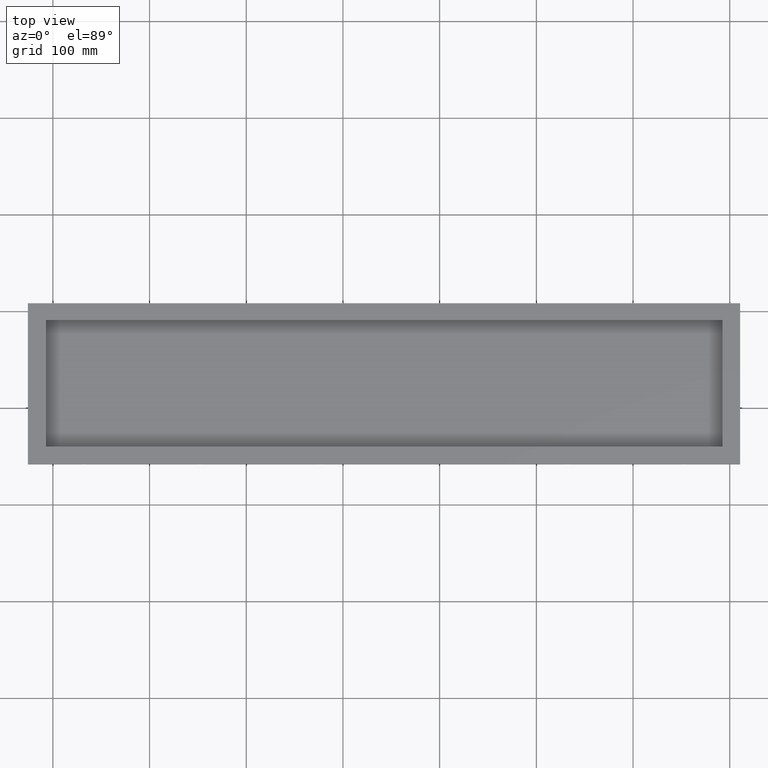
[diagram: clean part render]
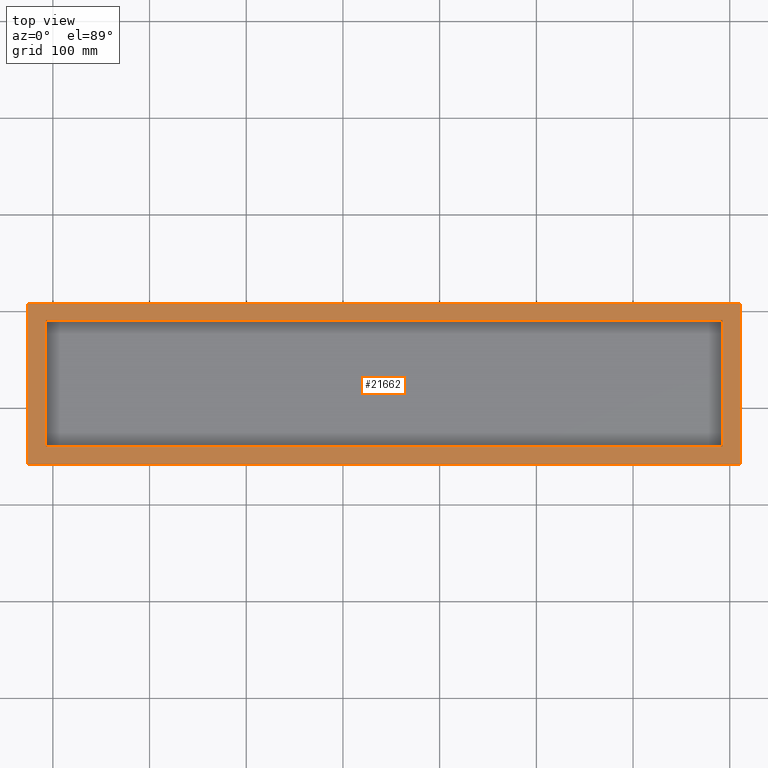
[diagram: same view with one face highlighted and labeled with its STEP entity id]
A machine part, top view. The second image highlights one B-rep face of the part: STEP entity #21662.
In plain terms, the highlighted planar face has unit normal (0, 0, 1).
Its self-contained STEP definition (entity closure, byte-faithful):
#3525 = CARTESIAN_POINT ( 'NONE',  ( 349.7999999999999500, -85.85200000000003200, 0.0000000000000000000 ) ) ;
#3526 = LINE ( 'NONE', #3525, #4042 ) ;
#3662 = DIRECTION ( 'NONE',  ( -0.0000000000000000000, 1.000000000000000000, 0.0000000000000000000 ) ) ;
#3663 = VECTOR ( 'NONE', #3662, 1000.000000000000000 ) ;
#3664 = CARTESIAN_POINT ( 'NONE',  ( 368.2999999999874500, -85.85200000000003200, 0.0000000000000000000 ) ) ;
#3665 = LINE ( 'NONE', #3664, #3663 ) ;
#3753 = CARTESIAN_POINT ( 'NONE',  ( 368.2999999999968300, -83.15000000000029000, 0.0000000000000000000 ) ) ;
#3788 = CARTESIAN_POINT ( 'NONE',  ( -368.2999999999968300, 83.14999999999997700, 0.0000000000000000000 ) ) ;
#3804 = CARTESIAN_POINT ( 'NONE',  ( 368.2999999999937600, 83.15000000000000600, 0.0000000000000000000 ) ) ;
#3841 = DIRECTION ( 'NONE',  ( -1.000000000000000000, -0.0000000000000000000, 0.0000000000000000000 ) ) ;
#3842 = VECTOR ( 'NONE', #3841, 1000.000000000000000 ) ;
#3843 = CARTESIAN_POINT ( 'NONE',  ( -382.4080000000000200, 83.15000000000002000, 0.0000000000000000000 ) ) ;
#3844 = LINE ( 'NONE', #3843, #3842 ) ;
#3851 = CARTESIAN_POINT ( 'NONE',  ( -349.8000000000000100, 65.70000000000000300, 0.0000000000000000000 ) ) ;
#3852 = CARTESIAN_POINT ( 'NONE',  ( -368.2999999999937600, -83.15000000000011900, 0.0000000000000000000 ) ) ;
#3896 = DIRECTION ( 'NONE',  ( 0.0000000000000000000, -1.000000000000000000, -0.0000000000000000000 ) ) ;
#3897 = VECTOR ( 'NONE', #3896, 1000.000000000000000 ) ;
#3898 = CARTESIAN_POINT ( 'NONE',  ( -368.2999999999873900, -85.85200000000003200, 0.0000000000000000000 ) ) ;
#3902 = LINE ( 'NONE', #3898, #3897 ) ;
#3907 = DIRECTION ( 'NONE',  ( 1.000000000000000000, 0.0000000000000000000, -0.0000000000000000000 ) ) ;
#3908 = VECTOR ( 'NONE', #3907, 1000.000000000000000 ) ;
#3909 = CARTESIAN_POINT ( 'NONE',  ( -382.4080000000000200, -83.15000000000046000, 0.0000000000000000000 ) ) ;
#3910 = LINE ( 'NONE', #3909, #3908 ) ;
#3929 = CARTESIAN_POINT ( 'NONE',  ( 349.8000000000000100, 65.70000000000000300, 0.0000000000000000000 ) ) ;
#3930 = DIRECTION ( 'NONE',  ( 1.000000000000000000, 0.0000000000000000000, -0.0000000000000000000 ) ) ;
#3931 = VECTOR ( 'NONE', #3930, 1000.000000000000000 ) ;
#3932 = CARTESIAN_POINT ( 'NONE',  ( -382.4080000000000200, 65.69999999999998900, 0.0000000000000000000 ) ) ;
#3936 = LINE ( 'NONE', #3932, #3931 ) ;
#3970 = CARTESIAN_POINT ( 'NONE',  ( -349.8000000000000100, -65.00000000000000000, 0.0000000000000000000 ) ) ;
#3971 = CARTESIAN_POINT ( 'NONE',  ( 349.8000000000000100, -65.00000000000000000, 0.0000000000000000000 ) ) ;
#3972 = DIRECTION ( 'NONE',  ( -1.000000000000000000, -0.0000000000000000000, 0.0000000000000000000 ) ) ;
#3973 = VECTOR ( 'NONE', #3972, 1000.000000000000000 ) ;
#3974 = CARTESIAN_POINT ( 'NONE',  ( -382.4080000000000200, -65.00000000000000000, 0.0000000000000000000 ) ) ;
#3975 = LINE ( 'NONE', #3974, #3973 ) ;
#4021 = DIRECTION ( 'NONE',  ( -0.0000000000000000000, 1.000000000000000000, 0.0000000000000000000 ) ) ;
#4022 = VECTOR ( 'NONE', #4021, 1000.000000000000000 ) ;
#4023 = CARTESIAN_POINT ( 'NONE',  ( -349.8000000000000100, -85.85200000000003200, 0.0000000000000000000 ) ) ;
#4028 = LINE ( 'NONE', #4023, #4022 ) ;
#4031 = DIRECTION ( 'NONE',  ( 1.000000000000000000, 0.0000000000000000000, -0.0000000000000000000 ) ) ;
#4033 = DIRECTION ( 'NONE',  ( 0.0000000000000000000, 0.0000000000000000000, 1.000000000000000000 ) ) ;
#4034 = AXIS2_PLACEMENT_3D ( 'NONE', #4037, #4033, #4031 ) ;
#4037 = CARTESIAN_POINT ( 'NONE',  ( -382.4080000000000200, -85.85200000000003200, 0.0000000000000000000 ) ) ;
#4038 = PLANE ( 'NONE',  #4034 ) ;
#4039 = FACE_OUTER_BOUND ( 'NONE', #21744, .T. ) ;
#4040 = FACE_BOUND ( 'NONE', #21665, .T. ) ;
#4041 = DIRECTION ( 'NONE',  ( 0.0000000000000000000, -1.000000000000000000, -0.0000000000000000000 ) ) ;
#4042 = VECTOR ( 'NONE', #4041, 1000.000000000000000 ) ;
#21201 = EDGE_CURVE ( 'NONE', #21321, #21333, #3665, .T. ) ;
#21321 = VERTEX_POINT ( 'NONE', #3753 ) ;
#21333 = VERTEX_POINT ( 'NONE', #3804 ) ;
#21369 = VERTEX_POINT ( 'NONE', #3788 ) ;
#21375 = EDGE_CURVE ( 'NONE', #21333, #21369, #3844, .T. ) ;
#21471 = VERTEX_POINT ( 'NONE', #3852 ) ;
#21483 = VERTEX_POINT ( 'NONE', #3851 ) ;
#21518 = EDGE_CURVE ( 'NONE', #21471, #21321, #3910, .T. ) ;
#21533 = EDGE_CURVE ( 'NONE', #21369, #21471, #3902, .T. ) ;
#21563 = EDGE_CURVE ( 'NONE', #21483, #21566, #3936, .T. ) ;
#21566 = VERTEX_POINT ( 'NONE', #3929 ) ;
#21588 = EDGE_CURVE ( 'NONE', #21590, #21594, #3975, .T. ) ;
#21590 = VERTEX_POINT ( 'NONE', #3971 ) ;
#21594 = VERTEX_POINT ( 'NONE', #3970 ) ;
#21617 = ORIENTED_EDGE ( 'NONE', *, *, #21375, .T. ) ;
#21650 = EDGE_CURVE ( 'NONE', #21566, #21590, #3526, .T. ) ;
#21662 = ADVANCED_FACE ( 'NONE', ( #4040, #4039 ), #4038, .T. ) ;
#21665 = EDGE_LOOP ( 'NONE', ( #21672, #21732, #21738, #21742 ) ) ;
#21672 = ORIENTED_EDGE ( 'NONE', *, *, #21563, .T. ) ;
#21676 = EDGE_CURVE ( 'NONE', #21594, #21483, #4028, .T. ) ;
#21732 = ORIENTED_EDGE ( 'NONE', *, *, #21650, .T. ) ;
#21738 = ORIENTED_EDGE ( 'NONE', *, *, #21588, .T. ) ;
#21742 = ORIENTED_EDGE ( 'NONE', *, *, #21676, .T. ) ;
#21744 = EDGE_LOOP ( 'NONE', ( #21753, #21755, #21757, #21617 ) ) ;
#21753 = ORIENTED_EDGE ( 'NONE', *, *, #21533, .T. ) ;
#21755 = ORIENTED_EDGE ( 'NONE', *, *, #21518, .T. ) ;
#21757 = ORIENTED_EDGE ( 'NONE', *, *, #21201, .T. ) ;